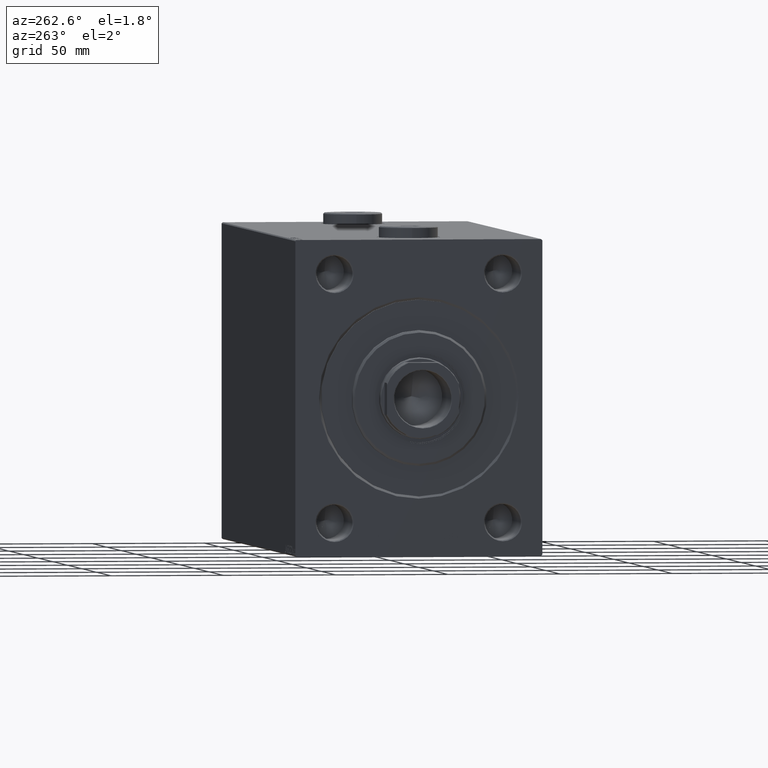
[diagram: clean part render]
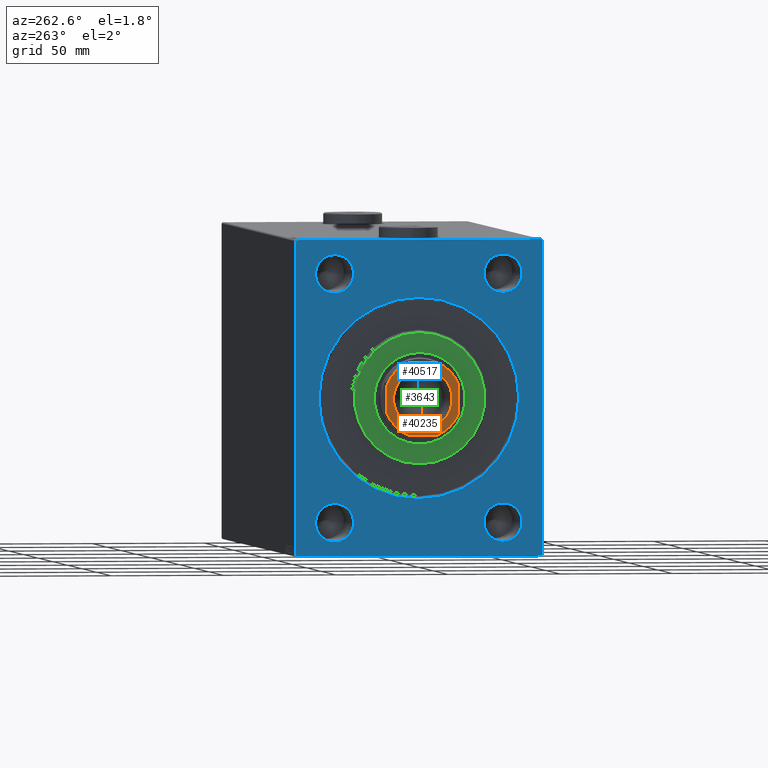
[diagram: same view with three faces highlighted in distinct colors, each labeled with its STEP entity id]
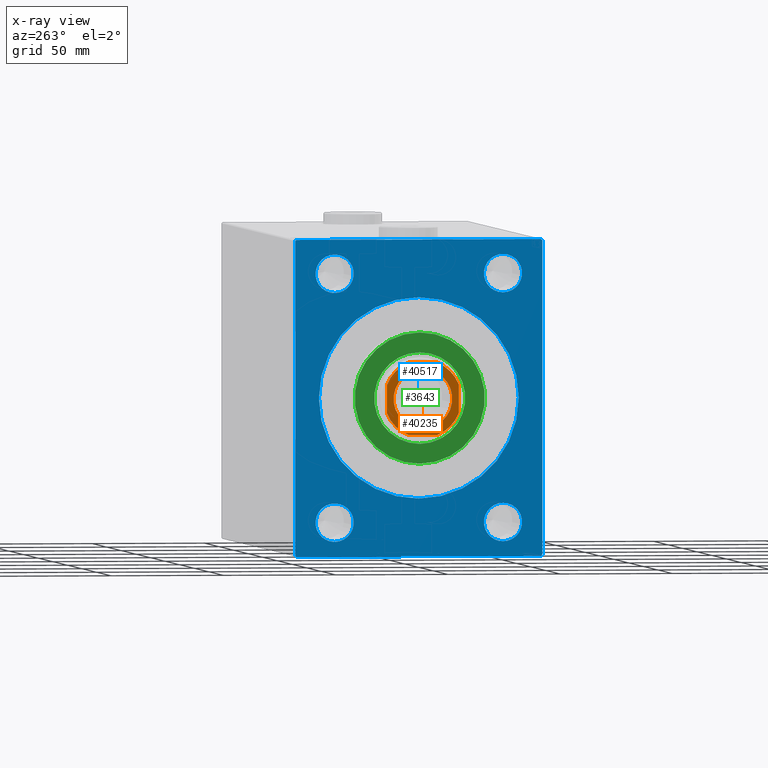
[diagram: x-ray of the same camera — body ghosted, the three highlighted faces saturated]
A machine part, auxiliary view with three faces highlighted in distinct colors.
The next image is the same camera in x-ray (body ghosted, the three faces saturated) — at least one of them is partly hidden behind the body in this view.
Their STEP definitions:

[orange] entity #40235 — the highlighted planar face has unit normal (-1, 0, 0).
#67 = VERTEX_POINT ( 'NONE', #22004 ) ;
#104 = CARTESIAN_POINT ( 'NONE',  ( -15.99999999999999645, 6.311893535223785712, 246.0000000000000000 ) ) ;
#870 = ORIENTED_EDGE ( 'NONE', *, *, #32535, .T. ) ;
#1020 = CARTESIAN_POINT ( 'NONE',  ( 0.000000000000000000, 0.000000000000000000, 246.0000000000000000 ) ) ;
#1030 = DIRECTION ( 'NONE',  ( 1.000000000000000000, 0.000000000000000000, 0.000000000000000000 ) ) ;
#2073 = EDGE_CURVE ( 'NONE', #3187, #17440, #37222, .T. ) ;
#2606 = DIRECTION ( 'NONE',  ( -0.000000000000000000, 0.000000000000000000, 1.000000000000000000 ) ) ;
#2816 = VERTEX_POINT ( 'NONE', #23248 ) ;
#2993 = ORIENTED_EDGE ( 'NONE', *, *, #17138, .T. ) ;
#3187 = VERTEX_POINT ( 'NONE', #11167 ) ;
#4273 = LINE ( 'NONE', #18358, #31224 ) ;
#4461 = CARTESIAN_POINT ( 'NONE',  ( -6.311893535223781271, 16.00000000000000000, 246.0000000000000000 ) ) ;
#5029 = AXIS2_PLACEMENT_3D ( 'NONE', #31695, #34092, #38878 ) ;
#5416 = CARTESIAN_POINT ( 'NONE',  ( 0.000000000000000000, 0.000000000000000000, 246.0000000000000000 ) ) ;
#7824 = ORIENTED_EDGE ( 'NONE', *, *, #22956, .T. ) ;
#8296 = CARTESIAN_POINT ( 'NONE',  ( 0.000000000000000000, 0.000000000000000000, 246.0000000000000000 ) ) ;
#8303 = LINE ( 'NONE', #11540, #28409 ) ;
#8739 = AXIS2_PLACEMENT_3D ( 'NONE', #8296, #40172, #19812 ) ;
#9081 = CIRCLE ( 'NONE', #27485, 17.19999999999999218 ) ;
#9418 = CARTESIAN_POINT ( 'NONE',  ( 0.000000000000000000, 0.000000000000000000, 246.0000000000000000 ) ) ;
#10050 = CARTESIAN_POINT ( 'NONE',  ( 16.00000000000000355, -6.311893535223673801, 246.0000000000000000 ) ) ;
#10190 = CARTESIAN_POINT ( 'NONE',  ( -13.04999999999995097, 1.598164072887289857E-15, 246.0000000000000000 ) ) ;
#10324 = DIRECTION ( 'NONE',  ( 0.000000000000000000, -0.000000000000000000, -1.000000000000000000 ) ) ;
#10325 = CARTESIAN_POINT ( 'NONE',  ( 6.311893535223749296, 16.00000000000000000, 246.0000000000000000 ) ) ;
#11167 = CARTESIAN_POINT ( 'NONE',  ( 6.311893535223677354, -16.00000000000000000, 246.0000000000000000 ) ) ;
#11394 = VECTOR ( 'NONE', #18223, 1000.000000000000000 ) ;
#11540 = CARTESIAN_POINT ( 'NONE',  ( -16.00000000000000000, 16.00000000000000000, 246.0000000000000000 ) ) ;
#11871 = DIRECTION ( 'NONE',  ( 1.000000000000000000, 0.000000000000000000, 0.000000000000000000 ) ) ;
#11885 = VERTEX_POINT ( 'NONE', #10190 ) ;
#14905 = EDGE_CURVE ( 'NONE', #21336, #35199, #9081, .T. ) ;
#15107 = DIRECTION ( 'NONE',  ( -0.000000000000000000, 0.000000000000000000, 1.000000000000000000 ) ) ;
#15481 = EDGE_CURVE ( 'NONE', #26002, #21336, #4273, .T. ) ;
#16104 = DIRECTION ( 'NONE',  ( 1.000000000000000000, 0.000000000000000000, 0.000000000000000000 ) ) ;
#17022 = DIRECTION ( 'NONE',  ( 1.000000000000000000, 0.000000000000000000, 0.000000000000000000 ) ) ;
#17138 = EDGE_CURVE ( 'NONE', #41917, #2816, #21666, .T. ) ;
#17440 = VERTEX_POINT ( 'NONE', #10050 ) ;
#17621 = CIRCLE ( 'NONE', #24274, 13.04999999999995097 ) ;
#18223 = DIRECTION ( 'NONE',  ( -1.084202172485504434E-16, 1.000000000000000000, -0.000000000000000000 ) ) ;
#18313 = CIRCLE ( 'NONE', #5029, 17.19999999999997797 ) ;
#18358 = CARTESIAN_POINT ( 'NONE',  ( -16.00000000000000000, 16.00000000000000000, 246.0000000000000000 ) ) ;
#19157 = EDGE_LOOP ( 'NONE', ( #27501, #19469 ) ) ;
#19469 = ORIENTED_EDGE ( 'NONE', *, *, #33151, .T. ) ;
#19812 = DIRECTION ( 'NONE',  ( 1.000000000000000000, 0.000000000000000000, 0.000000000000000000 ) ) ;
#20138 = PLANE ( 'NONE',  #21420 ) ;
#20473 = EDGE_CURVE ( 'NONE', #35199, #41917, #8303, .T. ) ;
#21109 = ORIENTED_EDGE ( 'NONE', *, *, #2073, .T. ) ;
#21336 = VERTEX_POINT ( 'NONE', #4461 ) ;
#21420 = AXIS2_PLACEMENT_3D ( 'NONE', #34258, #2606, #27299 ) ;
#21666 = CIRCLE ( 'NONE', #26833, 17.19999999999997797 ) ;
#22004 = CARTESIAN_POINT ( 'NONE',  ( 13.04999999999995097, 0.000000000000000000, 246.0000000000000000 ) ) ;
#22956 = EDGE_CURVE ( 'NONE', #17440, #38439, #29514, .T. ) ;
#23248 = CARTESIAN_POINT ( 'NONE',  ( -6.311893535223743079, -16.00000000000000000, 246.0000000000000000 ) ) ;
#23602 = FACE_OUTER_BOUND ( 'NONE', #33943, .T. ) ;
#24274 = AXIS2_PLACEMENT_3D ( 'NONE', #41977, #10324, #17022 ) ;
#24314 = ORIENTED_EDGE ( 'NONE', *, *, #14905, .T. ) ;
#25524 = EDGE_CURVE ( 'NONE', #2816, #3187, #26308, .T. ) ;
#26002 = VERTEX_POINT ( 'NONE', #10325 ) ;
#26308 = LINE ( 'NONE', #29781, #41004 ) ;
#26833 = AXIS2_PLACEMENT_3D ( 'NONE', #9418, #37834, #16104 ) ;
#27299 = DIRECTION ( 'NONE',  ( 1.000000000000000000, 0.000000000000000000, 0.000000000000000000 ) ) ;
#27485 = AXIS2_PLACEMENT_3D ( 'NONE', #1020, #15107, #11871 ) ;
#27501 = ORIENTED_EDGE ( 'NONE', *, *, #39531, .T. ) ;
#28334 = AXIS2_PLACEMENT_3D ( 'NONE', #5416, #44014, #1030 ) ;
#28409 = VECTOR ( 'NONE', #36494, 1000.000000000000000 ) ;
#28631 = CIRCLE ( 'NONE', #8739, 13.04999999999995097 ) ;
#28839 = CARTESIAN_POINT ( 'NONE',  ( 16.00000000000000000, 16.00000000000000000, 246.0000000000000000 ) ) ;
#29514 = LINE ( 'NONE', #28839, #11394 ) ;
#29781 = CARTESIAN_POINT ( 'NONE',  ( -15.99999999999999289, -16.00000000000000000, 246.0000000000000000 ) ) ;
#31224 = VECTOR ( 'NONE', #32463, 1000.000000000000000 ) ;
#31695 = CARTESIAN_POINT ( 'NONE',  ( 0.000000000000000000, 0.000000000000000000, 246.0000000000000000 ) ) ;
#31753 = ORIENTED_EDGE ( 'NONE', *, *, #25524, .T. ) ;
#32463 = DIRECTION ( 'NONE',  ( -1.000000000000000000, -0.000000000000000000, -0.000000000000000000 ) ) ;
#32535 = EDGE_CURVE ( 'NONE', #38439, #26002, #18313, .T. ) ;
#33151 = EDGE_CURVE ( 'NONE', #11885, #67, #28631, .T. ) ;
#33943 = EDGE_LOOP ( 'NONE', ( #7824, #870, #44630, #24314, #38264, #2993, #31753, #21109 ) ) ;
#34092 = DIRECTION ( 'NONE',  ( -0.000000000000000000, 0.000000000000000000, 1.000000000000000000 ) ) ;
#34189 = CARTESIAN_POINT ( 'NONE',  ( 16.00000000000000000, 6.311893535223748408, 246.0000000000000000 ) ) ;
#34258 = CARTESIAN_POINT ( 'NONE',  ( 0.000000000000000000, 0.000000000000000000, 246.0000000000000000 ) ) ;
#35199 = VERTEX_POINT ( 'NONE', #104 ) ;
#36494 = DIRECTION ( 'NONE',  ( 2.168404344971008868E-16, -1.000000000000000000, 0.000000000000000000 ) ) ;
#37222 = CIRCLE ( 'NONE', #28334, 17.19999999999995666 ) ;
#37834 = DIRECTION ( 'NONE',  ( -0.000000000000000000, 0.000000000000000000, 1.000000000000000000 ) ) ;
#38189 = FACE_BOUND ( 'NONE', #19157, .T. ) ;
#38264 = ORIENTED_EDGE ( 'NONE', *, *, #20473, .T. ) ;
#38439 = VERTEX_POINT ( 'NONE', #34189 ) ;
#38878 = DIRECTION ( 'NONE',  ( 1.000000000000000000, 0.000000000000000000, 0.000000000000000000 ) ) ;
#39531 = EDGE_CURVE ( 'NONE', #67, #11885, #17621, .T. ) ;
#40172 = DIRECTION ( 'NONE',  ( 0.000000000000000000, -0.000000000000000000, -1.000000000000000000 ) ) ;
#40235 = ADVANCED_FACE ( 'NONE', ( #38189, #23602 ), #20138, .T. ) ;
#41004 = VECTOR ( 'NONE', #43908, 1000.000000000000000 ) ;
#41917 = VERTEX_POINT ( 'NONE', #44229 ) ;
#41977 = CARTESIAN_POINT ( 'NONE',  ( 0.000000000000000000, 0.000000000000000000, 246.0000000000000000 ) ) ;
#43908 = DIRECTION ( 'NONE',  ( 1.000000000000000000, 0.000000000000000000, 0.000000000000000000 ) ) ;
#44014 = DIRECTION ( 'NONE',  ( -0.000000000000000000, 0.000000000000000000, 1.000000000000000000 ) ) ;
#44229 = CARTESIAN_POINT ( 'NONE',  ( -15.99999999999999645, -6.311893535223758178, 246.0000000000000000 ) ) ;
#44630 = ORIENTED_EDGE ( 'NONE', *, *, #15481, .T. ) ;

[blue] entity #40517 — the highlighted planar face has unit normal (1, 0, 0).
#212 = CIRCLE ( 'NONE', #20117, 8.499999999999980460 ) ;
#222 = VERTEX_POINT ( 'NONE', #20602 ) ;
#388 = CARTESIAN_POINT ( 'NONE',  ( 0.000000000000000000, 54.99999999999999289, 70.00000000000001421 ) ) ;
#435 = VECTOR ( 'NONE', #40338, 1000.000000000000114 ) ;
#914 = VERTEX_POINT ( 'NONE', #22282 ) ;
#1054 = CARTESIAN_POINT ( 'NONE',  ( 0.000000000000000000, -54.50000000000002842, -70.00000000000000000 ) ) ;
#1206 = VECTOR ( 'NONE', #3036, 999.9999999999998863 ) ;
#1506 = CARTESIAN_POINT ( 'NONE',  ( 0.000000000000000000, 54.50000000000004974, 70.00000000000001421 ) ) ;
#2127 = CARTESIAN_POINT ( 'NONE',  ( 0.000000000000000000, 0.000000000000000000, 0.000000000000000000 ) ) ;
#2265 = PLANE ( 'NONE',  #41374 ) ;
#2395 = CARTESIAN_POINT ( 'NONE',  ( 0.000000000000000000, 37.50000000000000000, -63.49999999999997158 ) ) ;
#2455 = DIRECTION ( 'NONE',  ( 0.000000000000000000, 0.000000000000000000, -1.000000000000000000 ) ) ;
#3036 = DIRECTION ( 'NONE',  ( 0.000000000000000000, -0.7071067811865425767, -0.7071067811865525687 ) ) ;
#3047 = CARTESIAN_POINT ( 'NONE',  ( 0.000000000000000000, -55.00000000000000000, 69.50000000000005684 ) ) ;
#3287 = DIRECTION ( 'NONE',  ( 0.000000000000000000, -9.912705577010325549E-17, 1.000000000000000000 ) ) ;
#4048 = VECTOR ( 'NONE', #3287, 1000.000000000000000 ) ;
#4395 = CIRCLE ( 'NONE', #43509, 8.499999999999980460 ) ;
#4579 = FACE_BOUND ( 'NONE', #33718, .T. ) ;
#4846 = ORIENTED_EDGE ( 'NONE', *, *, #30088, .T. ) ;
#4857 = EDGE_CURVE ( 'NONE', #15587, #20053, #31429, .T. ) ;
#5955 = DIRECTION ( 'NONE',  ( 0.000000000000000000, 0.000000000000000000, -1.000000000000000000 ) ) ;
#6194 = CARTESIAN_POINT ( 'NONE',  ( 0.000000000000000000, 0.000000000000000000, 0.000000000000000000 ) ) ;
#6240 = CARTESIAN_POINT ( 'NONE',  ( 0.000000000000000000, 37.50000000000000000, -54.99999999999999289 ) ) ;
#6307 = CARTESIAN_POINT ( 'NONE',  ( 0.000000000000000000, 0.000000000000000000, 0.000000000000000000 ) ) ;
#6577 = CARTESIAN_POINT ( 'NONE',  ( 0.000000000000000000, -55.00000000000000000, -70.00000000000000000 ) ) ;
#6674 = ORIENTED_EDGE ( 'NONE', *, *, #43147, .F. ) ;
#6890 = ORIENTED_EDGE ( 'NONE', *, *, #4857, .T. ) ;
#7211 = CARTESIAN_POINT ( 'NONE',  ( 0.000000000000000000, 37.50000000000000000, -46.50000000000001421 ) ) ;
#7276 = CIRCLE ( 'NONE', #38292, 8.499999999999980460 ) ;
#7289 = CARTESIAN_POINT ( 'NONE',  ( 0.000000000000000000, -37.49999999999999289, 55.00000000000000711 ) ) ;
#7498 = DIRECTION ( 'NONE',  ( 0.000000000000000000, 0.000000000000000000, -1.000000000000000000 ) ) ;
#7635 = CARTESIAN_POINT ( 'NONE',  ( 0.000000000000000000, 54.50000000000007105, -69.99999999999998579 ) ) ;
#7941 = CIRCLE ( 'NONE', #44086, 44.49999999999998579 ) ;
#8220 = LINE ( 'NONE', #388, #27533 ) ;
#9628 = CARTESIAN_POINT ( 'NONE',  ( 0.000000000000000000, -37.49999999999999289, 55.00000000000000711 ) ) ;
#9822 = DIRECTION ( 'NONE',  ( 0.000000000000000000, 1.000000000000000000, 1.261617073437677752E-16 ) ) ;
#9939 = AXIS2_PLACEMENT_3D ( 'NONE', #6307, #20142, #13683 ) ;
#9957 = VERTEX_POINT ( 'NONE', #30917 ) ;
#10275 = ORIENTED_EDGE ( 'NONE', *, *, #36160, .T. ) ;
#10498 = AXIS2_PLACEMENT_3D ( 'NONE', #9628, #19990, #2455 ) ;
#10568 = ORIENTED_EDGE ( 'NONE', *, *, #37677, .T. ) ;
#10587 = VERTEX_POINT ( 'NONE', #38028 ) ;
#10640 = LINE ( 'NONE', #21245, #1206 ) ;
#10687 = VERTEX_POINT ( 'NONE', #27478 ) ;
#11090 = ORIENTED_EDGE ( 'NONE', *, *, #35898, .F. ) ;
#11192 = VERTEX_POINT ( 'NONE', #1054 ) ;
#11750 = VECTOR ( 'NONE', #24235, 1000.000000000000000 ) ;
#11792 = ORIENTED_EDGE ( 'NONE', *, *, #18529, .T. ) ;
#12363 = VERTEX_POINT ( 'NONE', #16946 ) ;
#12650 = CARTESIAN_POINT ( 'NONE',  ( 0.000000000000000000, 37.50000000000000000, 55.00000000000000711 ) ) ;
#12747 = DIRECTION ( 'NONE',  ( 1.000000000000000000, 0.000000000000000000, 0.000000000000000000 ) ) ;
#13123 = FACE_OUTER_BOUND ( 'NONE', #22842, .T. ) ;
#13242 = LINE ( 'NONE', #13462, #4048 ) ;
#13462 = CARTESIAN_POINT ( 'NONE',  ( 0.000000000000000000, 55.00000000000000711, -69.99999999999998579 ) ) ;
#13498 = ORIENTED_EDGE ( 'NONE', *, *, #31002, .T. ) ;
#13683 = DIRECTION ( 'NONE',  ( 0.000000000000000000, 0.000000000000000000, -1.000000000000000000 ) ) ;
#14244 = CARTESIAN_POINT ( 'NONE',  ( 0.000000000000000000, -37.49999999999999289, -54.99999999999999289 ) ) ;
#15278 = CARTESIAN_POINT ( 'NONE',  ( 0.000000000000000000, 37.50000000000000000, 46.50000000000002842 ) ) ;
#15587 = VERTEX_POINT ( 'NONE', #15278 ) ;
#15808 = VERTEX_POINT ( 'NONE', #7635 ) ;
#15883 = VECTOR ( 'NONE', #9822, 1000.000000000000000 ) ;
#16398 = CIRCLE ( 'NONE', #24493, 8.499999999999980460 ) ;
#16576 = DIRECTION ( 'NONE',  ( 1.000000000000000000, 0.000000000000000000, 0.000000000000000000 ) ) ;
#16811 = FACE_BOUND ( 'NONE', #24200, .T. ) ;
#16946 = CARTESIAN_POINT ( 'NONE',  ( 0.000000000000000000, 0.000000000000000000, 44.49999999999998579 ) ) ;
#17165 = VERTEX_POINT ( 'NONE', #20470 ) ;
#18289 = ORIENTED_EDGE ( 'NONE', *, *, #41675, .T. ) ;
#18529 = EDGE_CURVE ( 'NONE', #9957, #12363, #42383, .T. ) ;
#19307 = ORIENTED_EDGE ( 'NONE', *, *, #42983, .T. ) ;
#19336 = EDGE_CURVE ( 'NONE', #914, #32345, #13242, .T. ) ;
#19836 = ORIENTED_EDGE ( 'NONE', *, *, #24183, .T. ) ;
#19990 = DIRECTION ( 'NONE',  ( 1.000000000000000000, 0.000000000000000000, 0.000000000000000000 ) ) ;
#20053 = VERTEX_POINT ( 'NONE', #36184 ) ;
#20117 = AXIS2_PLACEMENT_3D ( 'NONE', #14244, #31799, #45223 ) ;
#20142 = DIRECTION ( 'NONE',  ( 1.000000000000000000, 0.000000000000000000, 0.000000000000000000 ) ) ;
#20310 = DIRECTION ( 'NONE',  ( 0.000000000000000000, 0.000000000000000000, -1.000000000000000000 ) ) ;
#20339 = AXIS2_PLACEMENT_3D ( 'NONE', #12650, #16576, #5955 ) ;
#20470 = CARTESIAN_POINT ( 'NONE',  ( 0.000000000000000000, -54.50000000000004974, 70.00000000000000000 ) ) ;
#20602 = CARTESIAN_POINT ( 'NONE',  ( 0.000000000000000000, -37.49999999999999289, 46.50000000000002842 ) ) ;
#21011 = CARTESIAN_POINT ( 'NONE',  ( 0.000000000000000000, -54.50000000000002842, -70.00000000000000000 ) ) ;
#21245 = CARTESIAN_POINT ( 'NONE',  ( 0.000000000000000000, 55.00000000000000711, -69.50000000000004263 ) ) ;
#21316 = CARTESIAN_POINT ( 'NONE',  ( 0.000000000000000000, 37.50000000000000000, 55.00000000000000711 ) ) ;
#21501 = DIRECTION ( 'NONE',  ( -0.000000000000000000, 0.7071067811865524577, 0.7071067811865426878 ) ) ;
#22117 = FACE_BOUND ( 'NONE', #40423, .T. ) ;
#22120 = CARTESIAN_POINT ( 'NONE',  ( 0.000000000000000000, 54.50000000000004974, 70.00000000000001421 ) ) ;
#22282 = CARTESIAN_POINT ( 'NONE',  ( 0.000000000000000000, 55.00000000000000711, -69.50000000000004263 ) ) ;
#22414 = EDGE_CURVE ( 'NONE', #22963, #32345, #26202, .T. ) ;
#22842 = EDGE_LOOP ( 'NONE', ( #11090, #23868, #6674, #25835, #38942, #32785, #42813, #4846 ) ) ;
#22963 = VERTEX_POINT ( 'NONE', #22120 ) ;
#23523 = DIRECTION ( 'NONE',  ( 1.000000000000000000, 0.000000000000000000, 0.000000000000000000 ) ) ;
#23868 = ORIENTED_EDGE ( 'NONE', *, *, #32642, .T. ) ;
#24141 = DIRECTION ( 'NONE',  ( 0.000000000000000000, 0.000000000000000000, -1.000000000000000000 ) ) ;
#24183 = EDGE_CURVE ( 'NONE', #20053, #15587, #28404, .T. ) ;
#24200 = EDGE_LOOP ( 'NONE', ( #10275, #32116 ) ) ;
#24235 = DIRECTION ( 'NONE',  ( 0.000000000000000000, 0.000000000000000000, -1.000000000000000000 ) ) ;
#24493 = AXIS2_PLACEMENT_3D ( 'NONE', #7289, #35023, #24141 ) ;
#24804 = CARTESIAN_POINT ( 'NONE',  ( 0.000000000000000000, 37.50000000000000000, -54.99999999999999289 ) ) ;
#25069 = EDGE_CURVE ( 'NONE', #11192, #15808, #44933, .T. ) ;
#25584 = EDGE_CURVE ( 'NONE', #33711, #35499, #43969, .T. ) ;
#25835 = ORIENTED_EDGE ( 'NONE', *, *, #22414, .T. ) ;
#26202 = LINE ( 'NONE', #1506, #435 ) ;
#27478 = CARTESIAN_POINT ( 'NONE',  ( 0.000000000000000000, -55.00000000000000000, -69.50000000000000000 ) ) ;
#27533 = VECTOR ( 'NONE', #32484, 1000.000000000000000 ) ;
#27902 = EDGE_CURVE ( 'NONE', #914, #15808, #10640, .T. ) ;
#28211 = LINE ( 'NONE', #29112, #35282 ) ;
#28404 = CIRCLE ( 'NONE', #33571, 8.499999999999980460 ) ;
#28920 = DIRECTION ( 'NONE',  ( 0.000000000000000000, 0.000000000000000000, -1.000000000000000000 ) ) ;
#29112 = CARTESIAN_POINT ( 'NONE',  ( 0.000000000000000000, -55.00000000000000000, 69.50000000000005684 ) ) ;
#29317 = EDGE_LOOP ( 'NONE', ( #10568, #19307 ) ) ;
#29910 = AXIS2_PLACEMENT_3D ( 'NONE', #6240, #30719, #20310 ) ;
#30088 = EDGE_CURVE ( 'NONE', #11192, #10687, #31878, .T. ) ;
#30719 = DIRECTION ( 'NONE',  ( 1.000000000000000000, 0.000000000000000000, 0.000000000000000000 ) ) ;
#30917 = CARTESIAN_POINT ( 'NONE',  ( 0.000000000000000000, 5.449678256205719615E-15, -44.49999999999998579 ) ) ;
#31002 = EDGE_CURVE ( 'NONE', #12363, #9957, #7941, .T. ) ;
#31429 = CIRCLE ( 'NONE', #20339, 8.499999999999980460 ) ;
#31799 = DIRECTION ( 'NONE',  ( 1.000000000000000000, 0.000000000000000000, 0.000000000000000000 ) ) ;
#31878 = LINE ( 'NONE', #21011, #35974 ) ;
#32116 = ORIENTED_EDGE ( 'NONE', *, *, #25584, .T. ) ;
#32345 = VERTEX_POINT ( 'NONE', #35058 ) ;
#32484 = DIRECTION ( 'NONE',  ( 0.000000000000000000, -1.000000000000000000, -1.261617073437677999E-16 ) ) ;
#32543 = FACE_BOUND ( 'NONE', #45146, .T. ) ;
#32642 = EDGE_CURVE ( 'NONE', #38231, #17165, #28211, .T. ) ;
#32785 = ORIENTED_EDGE ( 'NONE', *, *, #27902, .T. ) ;
#33380 = CIRCLE ( 'NONE', #10498, 8.499999999999980460 ) ;
#33571 = AXIS2_PLACEMENT_3D ( 'NONE', #21316, #42819, #28920 ) ;
#33711 = VERTEX_POINT ( 'NONE', #2395 ) ;
#33718 = EDGE_LOOP ( 'NONE', ( #19836, #6890 ) ) ;
#34690 = VERTEX_POINT ( 'NONE', #43853 ) ;
#34870 = ORIENTED_EDGE ( 'NONE', *, *, #41487, .T. ) ;
#34906 = DIRECTION ( 'NONE',  ( -0.000000000000000000, -0.7071067811865279218, 0.7071067811865671127 ) ) ;
#35016 = CARTESIAN_POINT ( 'NONE',  ( 0.000000000000000000, -37.49999999999999289, -63.49999999999997158 ) ) ;
#35023 = DIRECTION ( 'NONE',  ( 1.000000000000000000, 0.000000000000000000, 0.000000000000000000 ) ) ;
#35058 = CARTESIAN_POINT ( 'NONE',  ( 0.000000000000000000, 54.99999999999999289, 69.50000000000007105 ) ) ;
#35282 = VECTOR ( 'NONE', #21501, 1000.000000000000000 ) ;
#35499 = VERTEX_POINT ( 'NONE', #7211 ) ;
#35898 = EDGE_CURVE ( 'NONE', #38231, #10687, #38366, .T. ) ;
#35974 = VECTOR ( 'NONE', #34906, 1000.000000000000000 ) ;
#36160 = EDGE_CURVE ( 'NONE', #35499, #33711, #4395, .T. ) ;
#36184 = CARTESIAN_POINT ( 'NONE',  ( 0.000000000000000000, 37.50000000000000000, 63.49999999999998579 ) ) ;
#37658 = DIRECTION ( 'NONE',  ( 0.000000000000000000, 0.000000000000000000, -1.000000000000000000 ) ) ;
#37677 = EDGE_CURVE ( 'NONE', #10587, #43936, #7276, .T. ) ;
#38028 = CARTESIAN_POINT ( 'NONE',  ( 0.000000000000000000, -37.49999999999999289, -46.50000000000001421 ) ) ;
#38086 = DIRECTION ( 'NONE',  ( 0.000000000000000000, 0.000000000000000000, -1.000000000000000000 ) ) ;
#38231 = VERTEX_POINT ( 'NONE', #3047 ) ;
#38292 = AXIS2_PLACEMENT_3D ( 'NONE', #45719, #23523, #37658 ) ;
#38366 = LINE ( 'NONE', #45287, #11750 ) ;
#38701 = DIRECTION ( 'NONE',  ( 1.000000000000000000, 0.000000000000000000, 0.000000000000000000 ) ) ;
#38942 = ORIENTED_EDGE ( 'NONE', *, *, #19336, .F. ) ;
#40338 = DIRECTION ( 'NONE',  ( -0.000000000000000000, 0.7071067811865474617, -0.7071067811865474617 ) ) ;
#40423 = EDGE_LOOP ( 'NONE', ( #18289, #34870 ) ) ;
#40517 = ADVANCED_FACE ( 'NONE', ( #32543, #43182, #22117, #4579, #16811, #13123 ), #2265, .F. ) ;
#41374 = AXIS2_PLACEMENT_3D ( 'NONE', #6194, #45003, #38086 ) ;
#41487 = EDGE_CURVE ( 'NONE', #222, #34690, #33380, .T. ) ;
#41675 = EDGE_CURVE ( 'NONE', #34690, #222, #16398, .T. ) ;
#42383 = CIRCLE ( 'NONE', #9939, 44.49999999999998579 ) ;
#42813 = ORIENTED_EDGE ( 'NONE', *, *, #25069, .F. ) ;
#42819 = DIRECTION ( 'NONE',  ( 1.000000000000000000, 0.000000000000000000, 0.000000000000000000 ) ) ;
#42983 = EDGE_CURVE ( 'NONE', #43936, #10587, #212, .T. ) ;
#43147 = EDGE_CURVE ( 'NONE', #22963, #17165, #8220, .T. ) ;
#43182 = FACE_BOUND ( 'NONE', #29317, .T. ) ;
#43509 = AXIS2_PLACEMENT_3D ( 'NONE', #24804, #38701, #7498 ) ;
#43853 = CARTESIAN_POINT ( 'NONE',  ( 0.000000000000000000, -37.49999999999999289, 63.49999999999998579 ) ) ;
#43936 = VERTEX_POINT ( 'NONE', #35016 ) ;
#43969 = CIRCLE ( 'NONE', #29910, 8.499999999999980460 ) ;
#44086 = AXIS2_PLACEMENT_3D ( 'NONE', #2127, #12747, #44182 ) ;
#44182 = DIRECTION ( 'NONE',  ( 0.000000000000000000, 0.000000000000000000, -1.000000000000000000 ) ) ;
#44933 = LINE ( 'NONE', #6577, #15883 ) ;
#45003 = DIRECTION ( 'NONE',  ( 1.000000000000000000, 0.000000000000000000, 0.000000000000000000 ) ) ;
#45146 = EDGE_LOOP ( 'NONE', ( #13498, #11792 ) ) ;
#45223 = DIRECTION ( 'NONE',  ( 0.000000000000000000, 0.000000000000000000, -1.000000000000000000 ) ) ;
#45287 = CARTESIAN_POINT ( 'NONE',  ( 0.000000000000000000, -55.00000000000000000, 70.00000000000000000 ) ) ;
#45719 = CARTESIAN_POINT ( 'NONE',  ( 0.000000000000000000, -37.49999999999999289, -54.99999999999999289 ) ) ;

[green] entity #3643 — the highlighted planar face has unit normal (-1, 0, 0).
#608 = CIRCLE ( 'NONE', #38972, 28.99999999999999289 ) ;
#3220 = PLANE ( 'NONE',  #6311 ) ;
#3643 = ADVANCED_FACE ( 'NONE', ( #28370, #42495 ), #3220, .T. ) ;
#4564 = AXIS2_PLACEMENT_3D ( 'NONE', #43470, #12274, #5586 ) ;
#4860 = CARTESIAN_POINT ( 'NONE',  ( 3.000000000000000000, 0.000000000000000000, 0.000000000000000000 ) ) ;
#5586 = DIRECTION ( 'NONE',  ( 0.000000000000000000, 0.000000000000000000, -1.000000000000000000 ) ) ;
#6311 = AXIS2_PLACEMENT_3D ( 'NONE', #27699, #28600, #17757 ) ;
#6950 = CARTESIAN_POINT ( 'NONE',  ( 3.000000000000000000, 2.479909768273390300E-15, 20.25000000000000000 ) ) ;
#7187 = EDGE_CURVE ( 'NONE', #17670, #19924, #14511, .T. ) ;
#11732 = EDGE_CURVE ( 'NONE', #14105, #22998, #34826, .T. ) ;
#12274 = DIRECTION ( 'NONE',  ( 1.000000000000000000, 0.000000000000000000, 0.000000000000000000 ) ) ;
#13291 = EDGE_LOOP ( 'NONE', ( #25772, #13313 ) ) ;
#13313 = ORIENTED_EDGE ( 'NONE', *, *, #32427, .T. ) ;
#13941 = EDGE_LOOP ( 'NONE', ( #29944, #29358 ) ) ;
#14105 = VERTEX_POINT ( 'NONE', #6950 ) ;
#14434 = CIRCLE ( 'NONE', #41721, 20.25000000000000000 ) ;
#14511 = CIRCLE ( 'NONE', #32932, 28.99999999999999289 ) ;
#14917 = CARTESIAN_POINT ( 'NONE',  ( 3.000000000000000000, 3.612708057484691604E-15, -28.99999999999999289 ) ) ;
#15478 = DIRECTION ( 'NONE',  ( 1.000000000000000000, -0.000000000000000000, 0.000000000000000000 ) ) ;
#16070 = DIRECTION ( 'NONE',  ( 1.000000000000000000, -0.000000000000000000, 0.000000000000000000 ) ) ;
#16798 = CARTESIAN_POINT ( 'NONE',  ( 3.000000000000000000, 0.000000000000000000, 0.000000000000000000 ) ) ;
#17670 = VERTEX_POINT ( 'NONE', #35558 ) ;
#17757 = DIRECTION ( 'NONE',  ( 0.000000000000000000, 0.000000000000000000, -1.000000000000000000 ) ) ;
#19924 = VERTEX_POINT ( 'NONE', #14917 ) ;
#21491 = DIRECTION ( 'NONE',  ( 0.000000000000000000, 0.000000000000000000, -1.000000000000000000 ) ) ;
#22998 = VERTEX_POINT ( 'NONE', #36484 ) ;
#25772 = ORIENTED_EDGE ( 'NONE', *, *, #7187, .T. ) ;
#25943 = EDGE_CURVE ( 'NONE', #22998, #14105, #14434, .T. ) ;
#26206 = CARTESIAN_POINT ( 'NONE',  ( 3.000000000000000000, 0.000000000000000000, 0.000000000000000000 ) ) ;
#27699 = CARTESIAN_POINT ( 'NONE',  ( 3.000000000000000000, 0.000000000000000000, 0.000000000000000000 ) ) ;
#28370 = FACE_OUTER_BOUND ( 'NONE', #13291, .T. ) ;
#28600 = DIRECTION ( 'NONE',  ( 1.000000000000000000, -0.000000000000000000, 0.000000000000000000 ) ) ;
#29358 = ORIENTED_EDGE ( 'NONE', *, *, #11732, .F. ) ;
#29944 = ORIENTED_EDGE ( 'NONE', *, *, #25943, .F. ) ;
#30149 = DIRECTION ( 'NONE',  ( 0.000000000000000000, 0.000000000000000000, -1.000000000000000000 ) ) ;
#30885 = DIRECTION ( 'NONE',  ( 1.000000000000000000, 0.000000000000000000, 0.000000000000000000 ) ) ;
#32427 = EDGE_CURVE ( 'NONE', #19924, #17670, #608, .T. ) ;
#32932 = AXIS2_PLACEMENT_3D ( 'NONE', #4860, #15478, #21491 ) ;
#34826 = CIRCLE ( 'NONE', #4564, 20.25000000000000000 ) ;
#35558 = CARTESIAN_POINT ( 'NONE',  ( 3.000000000000000000, 0.000000000000000000, 28.99999999999999289 ) ) ;
#36484 = CARTESIAN_POINT ( 'NONE',  ( 3.000000000000000000, 0.000000000000000000, -20.25000000000000000 ) ) ;
#38972 = AXIS2_PLACEMENT_3D ( 'NONE', #26206, #16070, #30149 ) ;
#41721 = AXIS2_PLACEMENT_3D ( 'NONE', #16798, #30885, #44992 ) ;
#42495 = FACE_BOUND ( 'NONE', #13941, .T. ) ;
#43470 = CARTESIAN_POINT ( 'NONE',  ( 3.000000000000000000, 0.000000000000000000, 0.000000000000000000 ) ) ;
#44992 = DIRECTION ( 'NONE',  ( 0.000000000000000000, 0.000000000000000000, -1.000000000000000000 ) ) ;